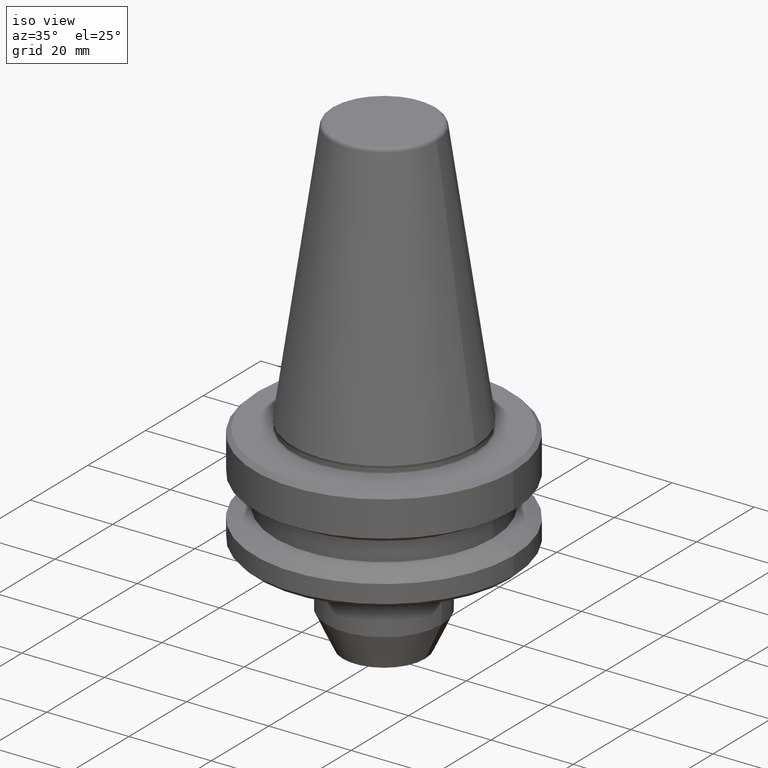
[diagram: clean part render]
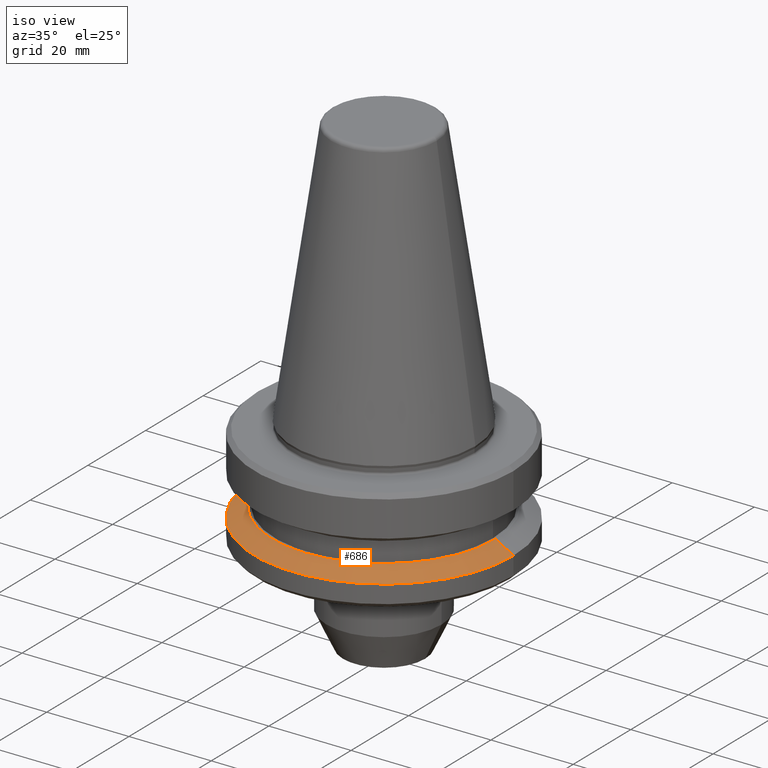
[diagram: same view with one face highlighted and labeled with its STEP entity id]
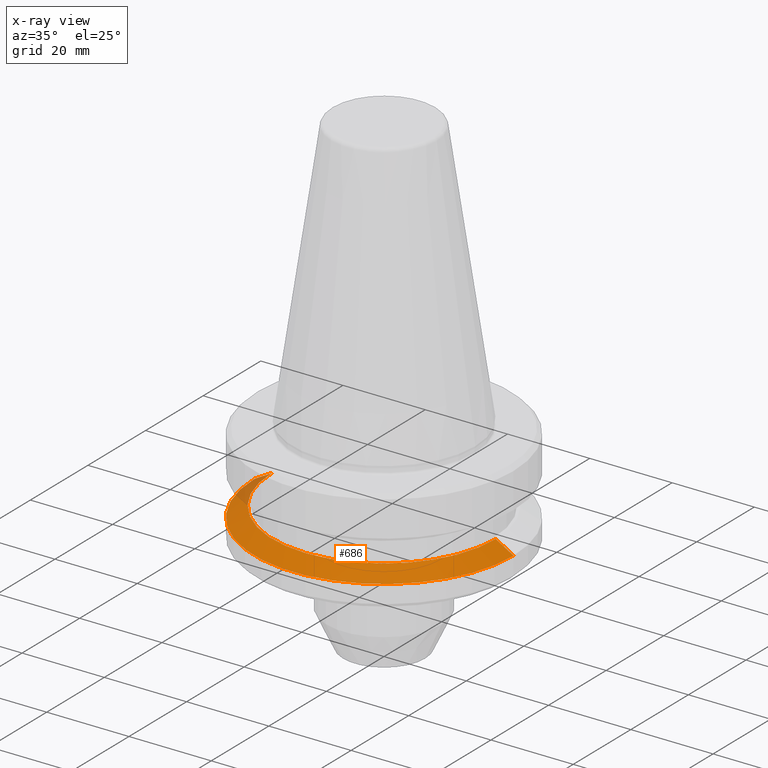
[diagram: x-ray of the same camera — body ghosted, the highlighted face saturated]
A machine part, iso view. The second image highlights one B-rep face of the part: STEP entity #686.
The next image is the same camera in x-ray: the body ghosted, the highlighted face saturated — about 4% of this face is hidden behind the body in this view.
In plain terms, the highlighted conical surface has half-angle 60 deg.
Its self-contained STEP definition (entity closure, byte-faithful):
#4 = DIRECTION ( 'NONE',  ( -1.000000000000000000, 0.0000000000000000000, 0.0000000000000000000 ) ) ;
#5 = AXIS2_PLACEMENT_3D ( 'NONE', #256, #480, #4 ) ;
#9 = FACE_OUTER_BOUND ( 'NONE', #333, .T. ) ;
#21 = CARTESIAN_POINT ( 'NONE',  ( 31.49999999999986100, 0.0000000000000000000, -21.60014200631776800 ) ) ;
#28 = CARTESIAN_POINT ( 'NONE',  ( -31.49999999999986100, 0.0000000000000000000, -21.60014200631776800 ) ) ;
#35 = VECTOR ( 'NONE', #95, 999.9999999999998900 ) ;
#75 = VERTEX_POINT ( 'NONE', #749 ) ;
#95 = DIRECTION ( 'NONE',  ( 0.8660254037844377100, 1.060575238724905700E-016, -0.5000000000000017800 ) ) ;
#136 = EDGE_CURVE ( 'NONE', #75, #437, #219, .T. ) ;
#153 = LINE ( 'NONE', #870, #35 ) ;
#219 = CIRCLE ( 'NONE', #822, 27.16962701892206100 ) ;
#256 = CARTESIAN_POINT ( 'NONE',  ( 0.0000000000000000000, 0.0000000000000000000, -21.60014200631776800 ) ) ;
#281 = DIRECTION ( 'NONE',  ( -0.0000000000000000000, -0.0000000000000000000, 1.000000000000000000 ) ) ;
#314 = DIRECTION ( 'NONE',  ( -0.8660254037844377100, 0.0000000000000000000, -0.5000000000000017800 ) ) ;
#333 = EDGE_LOOP ( 'NONE', ( #557, #924, #447, #886 ) ) ;
#343 = VERTEX_POINT ( 'NONE', #556 ) ;
#375 = DIRECTION ( 'NONE',  ( -0.0000000000000000000, -0.0000000000000000000, 1.000000000000000000 ) ) ;
#429 = CONICAL_SURFACE ( 'NONE', #5, 31.49999999999986100, 1.047197551196595600 ) ;
#437 = VERTEX_POINT ( 'NONE', #741 ) ;
#447 = ORIENTED_EDGE ( 'NONE', *, *, #673, .T. ) ;
#480 = DIRECTION ( 'NONE',  ( 0.0000000000000000000, 0.0000000000000000000, -1.000000000000000000 ) ) ;
#500 = VERTEX_POINT ( 'NONE', #21 ) ;
#553 = DIRECTION ( 'NONE',  ( 1.000000000000000000, 0.0000000000000000000, 0.0000000000000000000 ) ) ;
#556 = CARTESIAN_POINT ( 'NONE',  ( -31.49999999999986100, 3.857637417314145300E-015, -21.60014200631776800 ) ) ;
#557 = ORIENTED_EDGE ( 'NONE', *, *, #753, .F. ) ;
#665 = EDGE_CURVE ( 'NONE', #343, #500, #834, .T. ) ;
#673 = EDGE_CURVE ( 'NONE', #75, #343, #792, .T. ) ;
#686 = ADVANCED_FACE ( 'NONE', ( #9 ), #429, .T. ) ;
#741 = CARTESIAN_POINT ( 'NONE',  ( 27.16962701892206100, 3.592478546794589700E-015, -19.10000000000100300 ) ) ;
#742 = AXIS2_PLACEMENT_3D ( 'NONE', #981, #375, #966 ) ;
#749 = CARTESIAN_POINT ( 'NONE',  ( -27.16962701892206100, 0.0000000000000000000, -19.10000000000100300 ) ) ;
#753 = EDGE_CURVE ( 'NONE', #437, #500, #153, .T. ) ;
#770 = VECTOR ( 'NONE', #314, 999.9999999999998900 ) ;
#792 = LINE ( 'NONE', #28, #770 ) ;
#822 = AXIS2_PLACEMENT_3D ( 'NONE', #910, #281, #553 ) ;
#834 = CIRCLE ( 'NONE', #742, 31.49999999999986100 ) ;
#870 = CARTESIAN_POINT ( 'NONE',  ( 31.49999999999986100, 3.857637417314145300E-015, -21.60014200631776800 ) ) ;
#886 = ORIENTED_EDGE ( 'NONE', *, *, #665, .T. ) ;
#910 = CARTESIAN_POINT ( 'NONE',  ( 0.0000000000000000000, 0.0000000000000000000, -19.10000000000100300 ) ) ;
#924 = ORIENTED_EDGE ( 'NONE', *, *, #136, .F. ) ;
#966 = DIRECTION ( 'NONE',  ( 1.000000000000000000, 0.0000000000000000000, 0.0000000000000000000 ) ) ;
#981 = CARTESIAN_POINT ( 'NONE',  ( 0.0000000000000000000, 0.0000000000000000000, -21.60014200631776800 ) ) ;